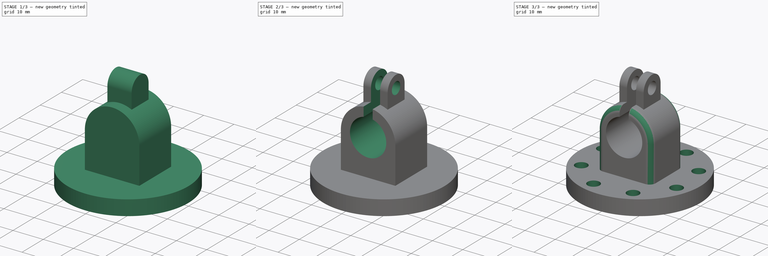
[diagram: build sequence overview — one tinted view per stage of 3, left to right]
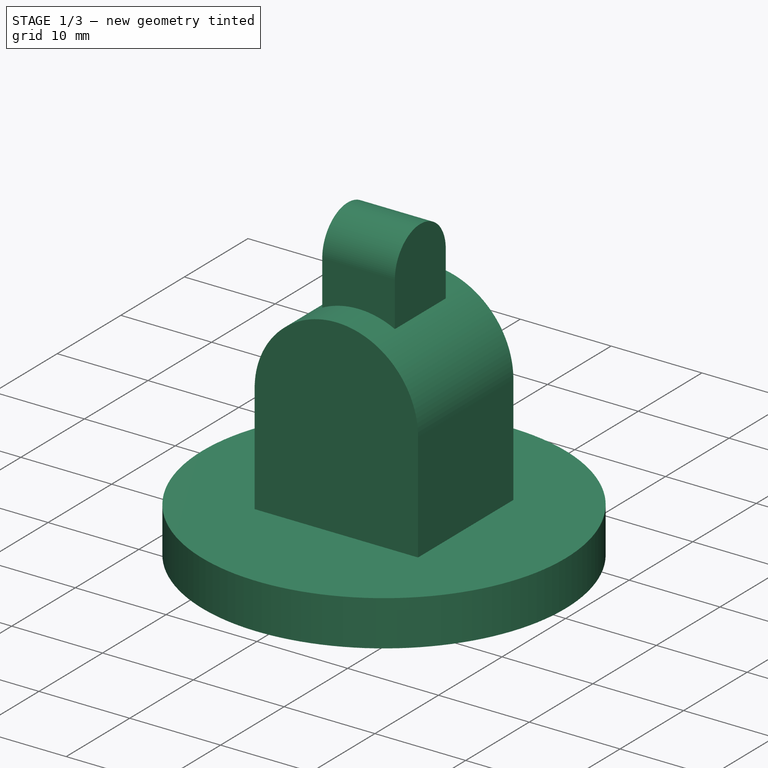
[diagram: stage 1 of 3 — iso view after this stage's code; geometry added in this stage tinted green]
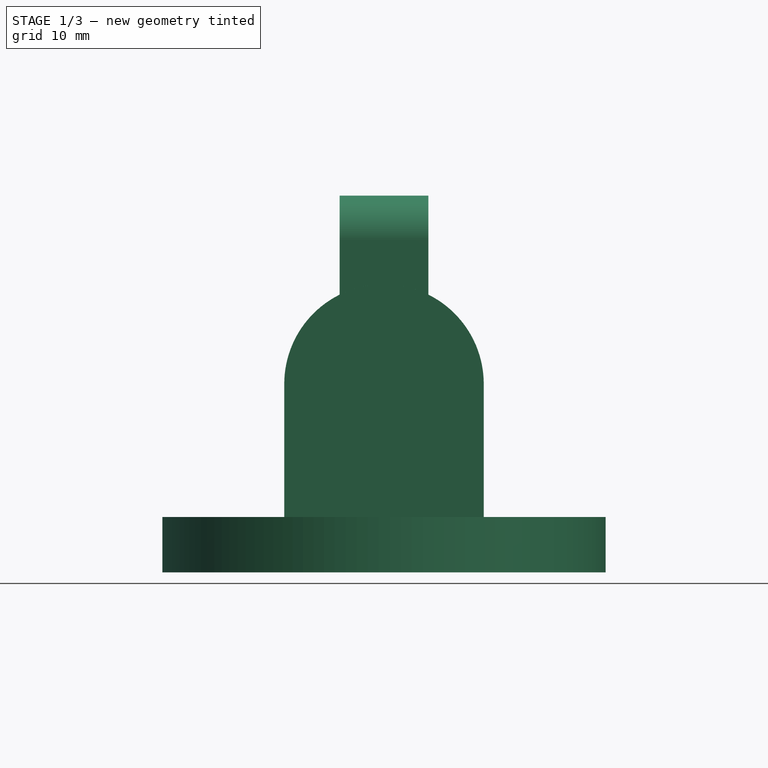
[diagram: stage 1 of 3 — front view after this stage's code; geometry added in this stage tinted green]
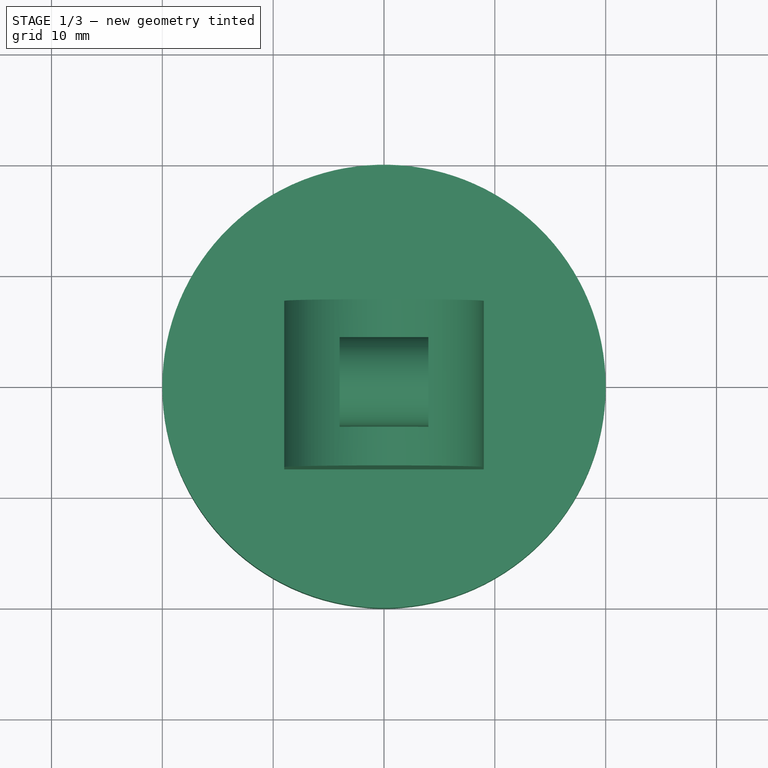
[diagram: stage 1 of 3 — top view after this stage's code; geometry added in this stage tinted green]
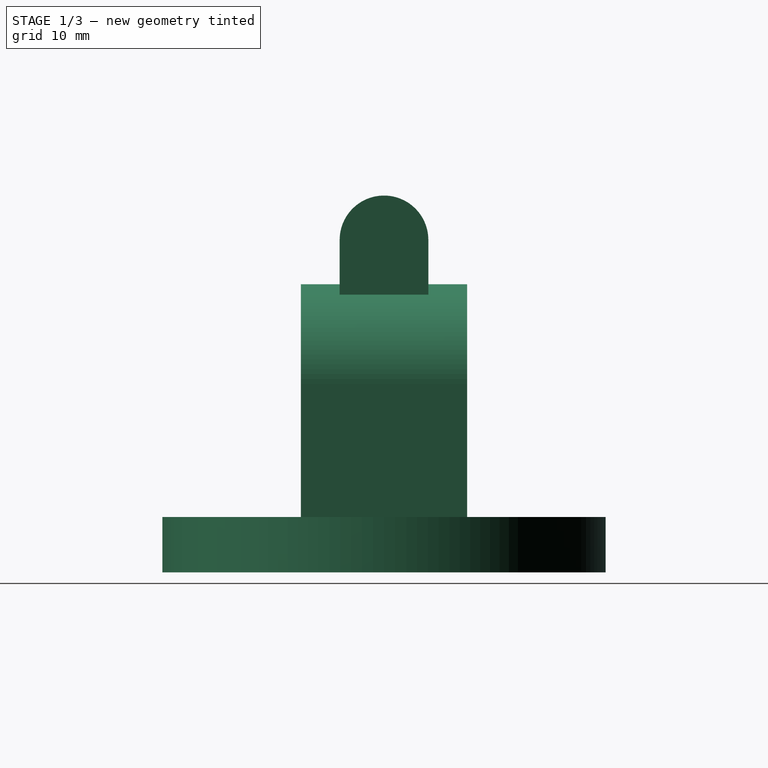
[diagram: stage 1 of 3 — right view after this stage's code; geometry added in this stage tinted green]
FCSTD DOCUMENT  (FreeCAD 0.18R4 (GitTag))
Label: 工装零件
License: All rights reserved
LicenseURL: http://en.wikipedia.org/wiki/All_rights_reserved
objects: Sketcher::SketchObject×6, PartDesign::Pad×3, PartDesign::Pocket×3, PartDesign::PolarPattern×1, PartDesign::Fillet×1, PartDesign::Body×1
note: 21 computed .brp shape members not serialized (recipe doc carries the construction recipe); baked Part::Feature solids carry a one-line shape summary decoded from their .brp

FEATURE [Sketcher::SketchObject] Sketch
  MapMode = 5
  Support = -> [XY_Plane]
  sketch-geometry (1):
    g0: Circle CenterX=0 CenterY=0 CenterZ=0 NormalX=0 NormalY=0 NormalZ=1 AngleXU=0 Radius=20
  constraints (2):
    c: Coincident(g0,g-1)
    c: Radius(g0) = 20
FEATURE [PartDesign::Pad] Pad
  Length = 5
  Length2 = 100
  Profile = -> Sketch
  Type = 0
FEATURE [Sketcher::SketchObject] Sketch001
  MapMode = 5
  Placement = pos=(0,0,0) rot=(1,0,0;1.5708rad)
  Support = -> [XZ_Plane]
  sketch-geometry (4):
    g0: LineSegment StartX=9 StartY=17 StartZ=0 EndX=9 EndY=-0.003877 EndZ=0
    g1: LineSegment StartX=9 StartY=-0.003877 StartZ=0 EndX=-9 EndY=-0.003877 EndZ=0
    g2: LineSegment StartX=-9 StartY=-0.003877 StartZ=0 EndX=-9 EndY=17 EndZ=0
    g3: ArcOfCircle CenterX=0 CenterY=17 CenterZ=0 NormalX=0 NormalY=0 NormalZ=1 AngleXU=0 Radius=9 StartAngle=2e-16 EndAngle=3.14159
  constraints (10):
    c: Coincident(g0,g1)
    c: Coincident(g1,g2)
    c: Horizontal(g1)
    c: Vertical(g0)
    c: Vertical(g2)
    c: PointOnObject(g3,g-2)
    c: Tangent(g3,g0) = 1.5708
    c: Tangent(g3,g2) = 1.5708
    c: DistanceY(g-1,g2) = 17
    c: Radius(g3) = 9
FEATURE [PartDesign::Pad] Pad001
  BaseFeature = -> Pad
  Length = 15
  Length2 = 100
  Midplane = true
  Profile = -> Sketch001
  Type = 0
FEATURE [Sketcher::SketchObject] Sketch002
  MapMode = 5
  Placement = pos=(0,0,0) rot=(0.57735,0.57735,0.57735;2.0944rad)
  Support = -> [YZ_Plane]
  sketch-geometry (4):
    g0: LineSegment StartX=-4 StartY=13.8 StartZ=0 EndX=-4 EndY=30 EndZ=0
    g1: ArcOfCircle CenterX=0 CenterY=30 CenterZ=0 NormalX=0 NormalY=0 NormalZ=1 AngleXU=0 Radius=4 StartAngle=4e-16 EndAngle=3.14159
    g2: LineSegment StartX=4 StartY=30 StartZ=0 EndX=4 EndY=13.8 EndZ=0
    g3: LineSegment StartX=4 StartY=13.8 StartZ=0 EndX=-4 EndY=13.8 EndZ=0
  constraints (11):
    c: Tangent(g0,g1) = 1.5708
    c: Tangent(g1,g2) = 1.5708
    c: Coincident(g2,g3)
    c: Coincident(g0,g3)
    c: Horizontal(g3)
    c: Vertical(g2)
    c: Vertical(g0)
    c: PointOnObject(g1,g-2)
    c: DistanceY(g-1,g1) = 30
    c: Radius(g1) = 4
    c: DistanceY(g-1,g2) = 13.8
FEATURE [PartDesign::Pad] Pad002
  BaseFeature = -> Pad001
  Length = 8
  Length2 = 100
  Midplane = true
  Profile = -> Sketch002
  Type = 0
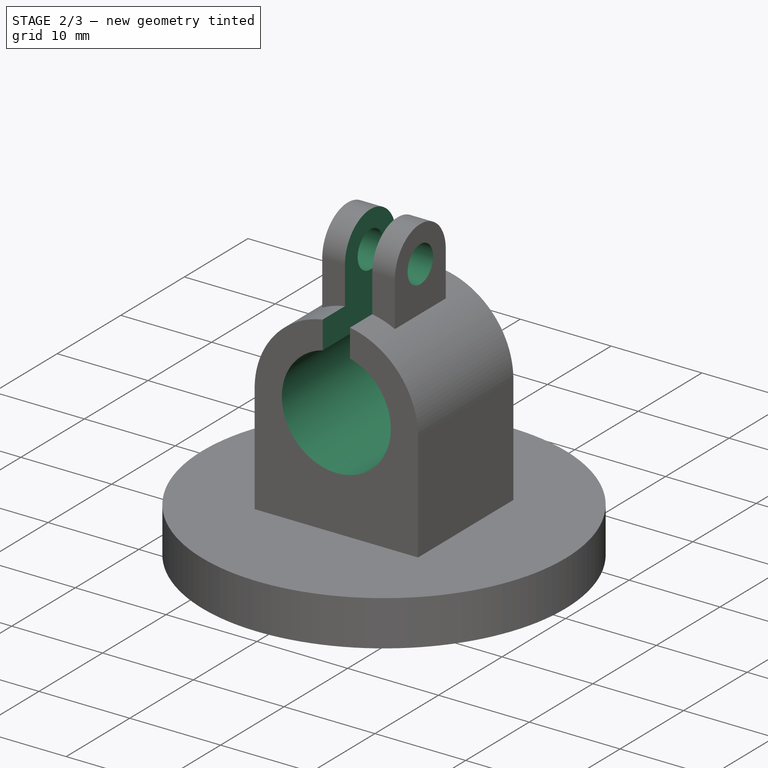
[diagram: stage 2 of 3 — iso view after this stage's code; geometry added in this stage tinted green]
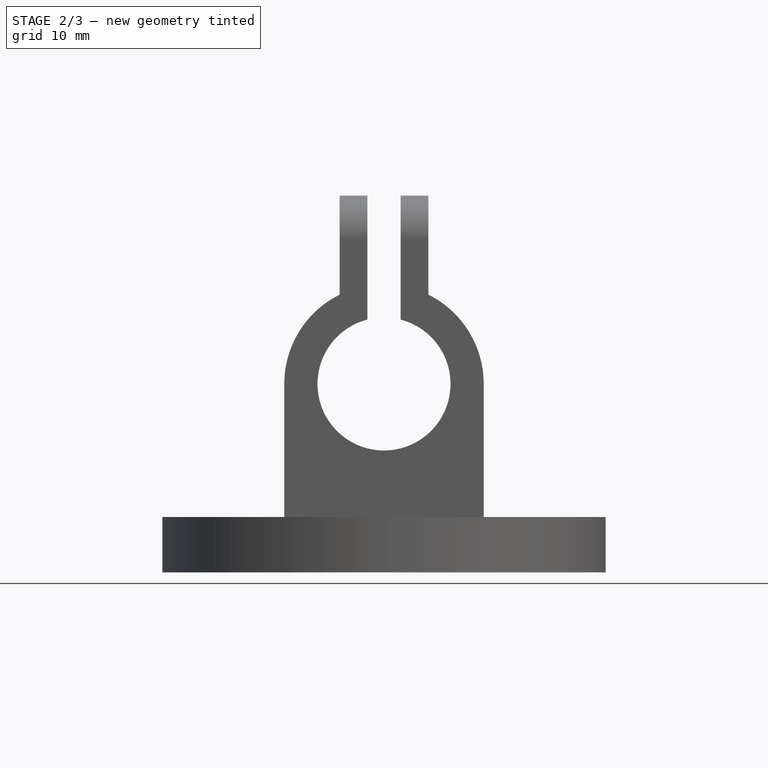
[diagram: stage 2 of 3 — front view after this stage's code; geometry added in this stage tinted green]
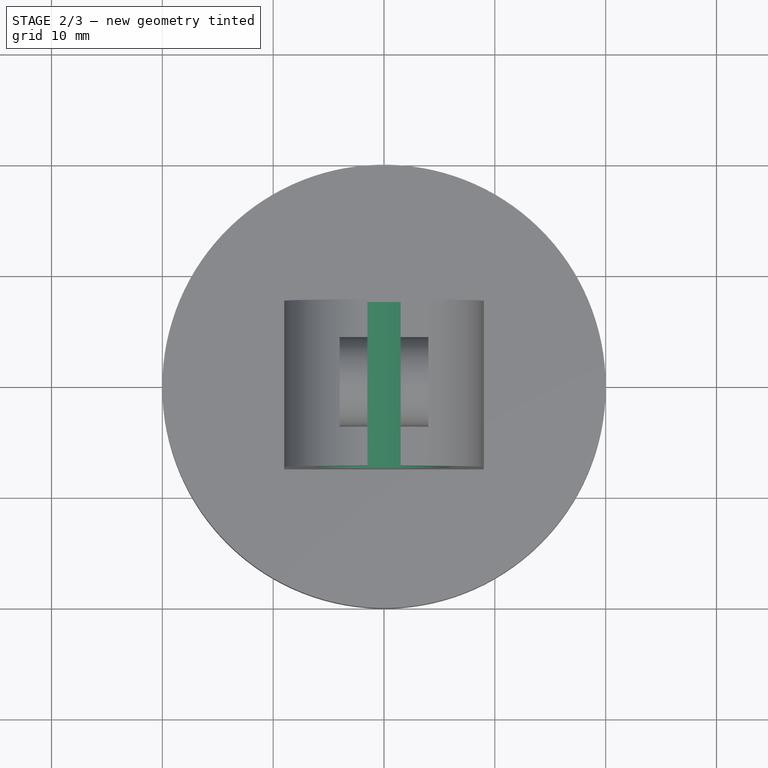
[diagram: stage 2 of 3 — top view after this stage's code; geometry added in this stage tinted green]
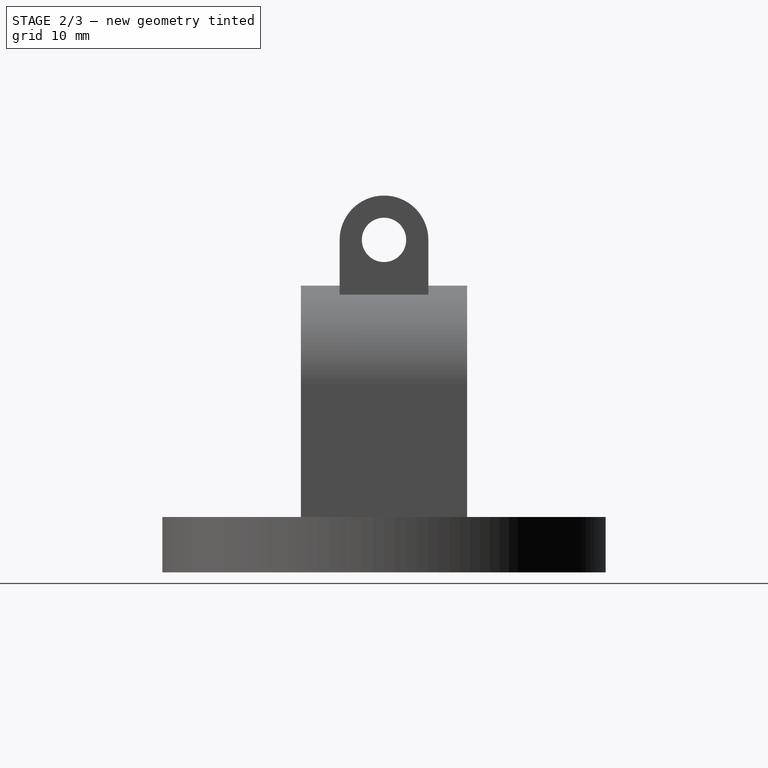
[diagram: stage 2 of 3 — right view after this stage's code; geometry added in this stage tinted green]
FEATURE [Sketcher::SketchObject] Sketch003
  ExternalGeometry = -> [Pad002]
  MapMode = 5
  Placement = pos=(4,-9e-16,9e-16) rot=(0.57735,0.57735,0.57735;2.0944rad)
  Support = -> [Pad002]
  sketch-geometry (1):
    g0: Circle CenterX=7.1e-15 CenterY=30 CenterZ=0 NormalX=0 NormalY=0 NormalZ=1 AngleXU=0 Radius=2
  constraints (2):
    c: Coincident(g0,g-3)
    c: Radius(g0) = 2
FEATURE [PartDesign::Pocket] Pocket
  BaseFeature = -> Pad002
  Length = 5
  Length2 = 100
  Profile = -> Sketch003
  Type = 1
FEATURE [Sketcher::SketchObject] Sketch004
  ExternalGeometry = -> [Pocket]
  MapMode = 5
  Placement = pos=(0,-7.5,1.7e-15) rot=(1,0,0;1.5708rad)
  Support = -> [Pocket]
  sketch-geometry (4):
    g0: ArcOfCircle CenterX=0 CenterY=17 CenterZ=0 NormalX=0 NormalY=0 NormalZ=1 AngleXU=0 Radius=6 StartAngle=1.82348 EndAngle=7.6013
    g1: LineSegment StartX=-1.5 StartY=39.24 StartZ=0 EndX=1.5 EndY=39.24 EndZ=0
    g2: LineSegment StartX=1.5 StartY=39.24 StartZ=0 EndX=1.5 EndY=22.8095 EndZ=0
    g3: LineSegment StartX=-1.5 StartY=22.8095 StartZ=0 EndX=-1.5 EndY=39.24 EndZ=0
  constraints (11):
    c: Coincident(g1,g2)
    c: Coincident(g3,g1)
    c: Vertical(g2)
    c: Vertical(g3)
    c: Coincident(g0,g-3)
    c: Radius(g0) = 6
    c: Coincident(g3,g0)
    c: Coincident(g2,g0)
    c: Symmetric(g1,g1,g-2)
    c: DistanceX(g1,g1) = 3
    c: DistanceY(g-1,g1) = 39.24
FEATURE [PartDesign::Pocket] Pocket001
  BaseFeature = -> Pocket
  Length = 5
  Length2 = 100
  Profile = -> Sketch004
  Type = 1
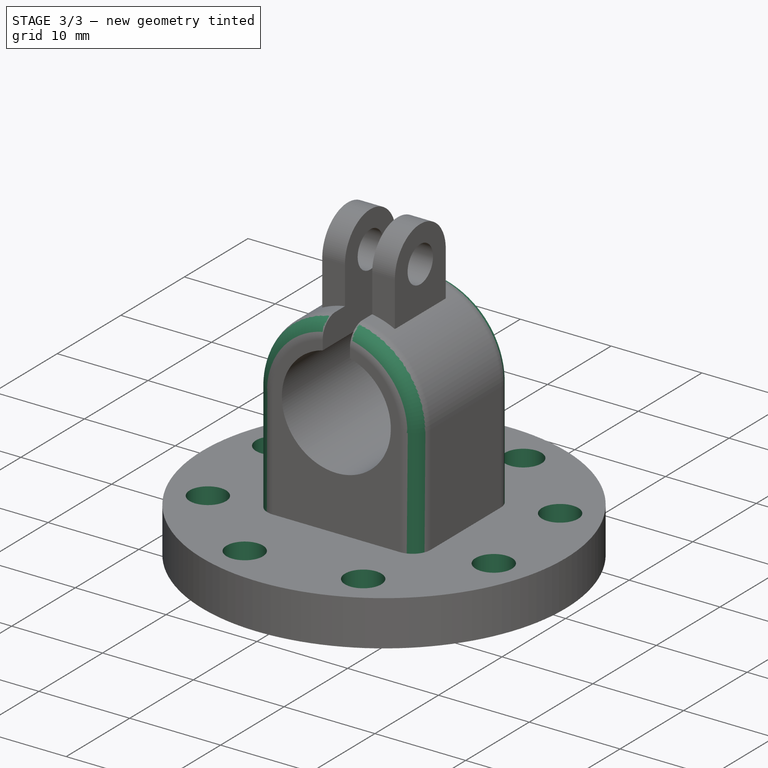
[diagram: stage 3 of 3 — iso view after this stage's code; geometry added in this stage tinted green]
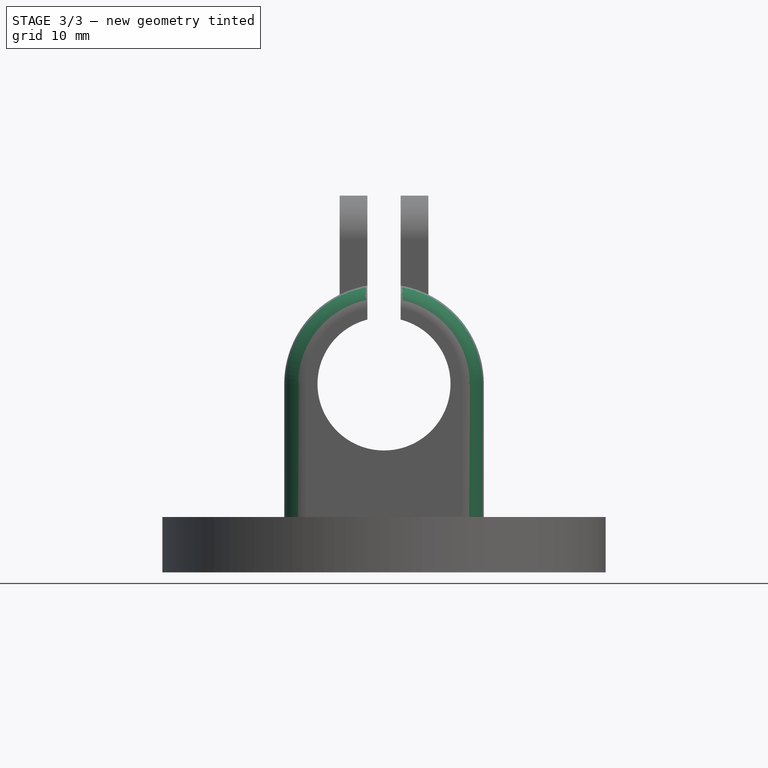
[diagram: stage 3 of 3 — front view after this stage's code; geometry added in this stage tinted green]
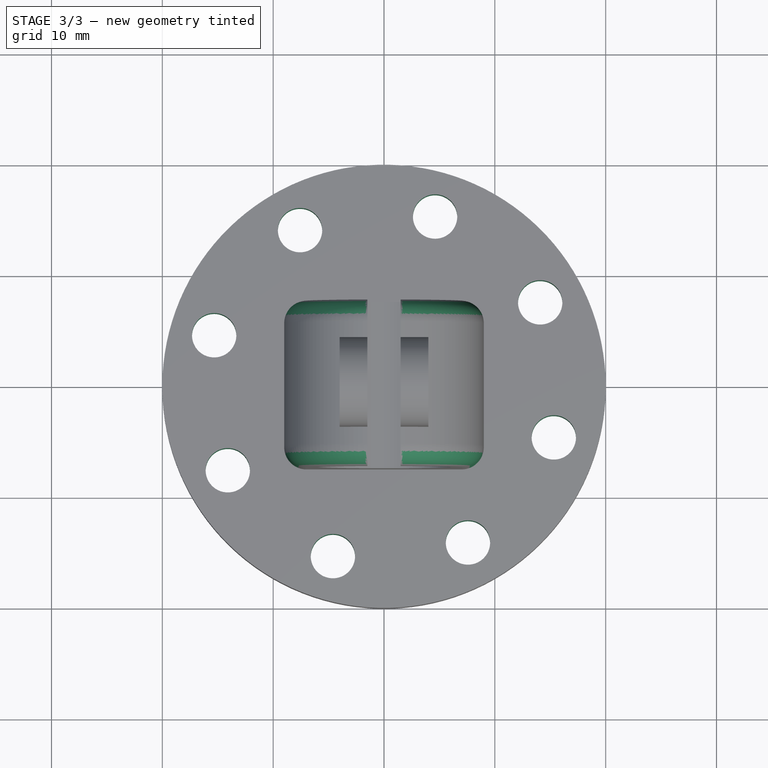
[diagram: stage 3 of 3 — top view after this stage's code; geometry added in this stage tinted green]
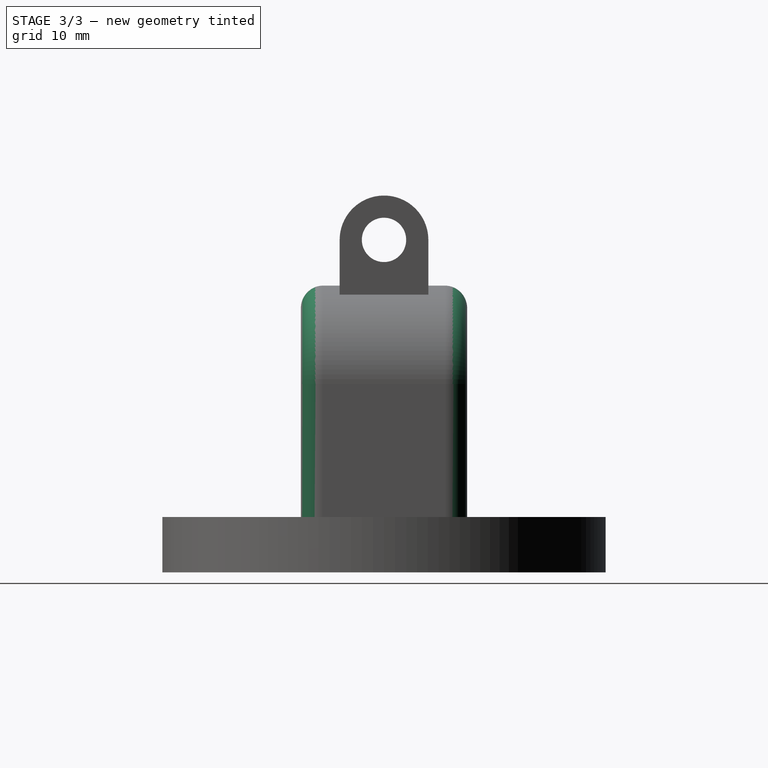
[diagram: stage 3 of 3 — right view after this stage's code; geometry added in this stage tinted green]
FEATURE [Sketcher::SketchObject] Sketch005
  MapMode = 5
  Placement = pos=(0,0,5) rot=(0,0,1;0rad)
  Support = -> [Pocket001]
  sketch-geometry (2):
    g0: Circle [constr] CenterX=0 CenterY=0 CenterZ=0 NormalX=0 NormalY=0 NormalZ=1 AngleXU=0 Radius=16
    g1: Circle CenterX=4.60923 CenterY=15.3217 CenterZ=0 NormalX=0 NormalY=0 NormalZ=1 AngleXU=0 Radius=2
  constraints (4):
    c: Coincident(g0,g-1)
    c: Radius(g0) = 16
    c: PointOnObject(g1,g0)
    c: Radius(g1) = 2
FEATURE [PartDesign::Pocket] Pocket002
  BaseFeature = -> Pocket001
  Length = 5
  Length2 = 100
  Profile = -> Sketch005
  Type = 1
FEATURE [PartDesign::PolarPattern] PolarPattern
  Angle = 360
  Axis = -> Sketch005 [N_Axis]
  BaseFeature = -> Pocket002
  Occurrences = 8
  Originals = -> [Pocket002]
FEATURE [PartDesign::Fillet] Fillet
  Base = -> PolarPattern [Edge47,Edge51,Edge53,Edge57]
  BaseFeature = -> PolarPattern
  Radius = 2
FEATURE [PartDesign::Body] Body
  Group = -> [Sketch,Pad,Sketch001,Pad001,Sketch002,Pad002,Sketch003,Pocket,Sketch004,Pocket001,Sketch005,Pocket002,PolarPattern,Fillet]
  Origin = -> Origin
  Tip = -> Fillet
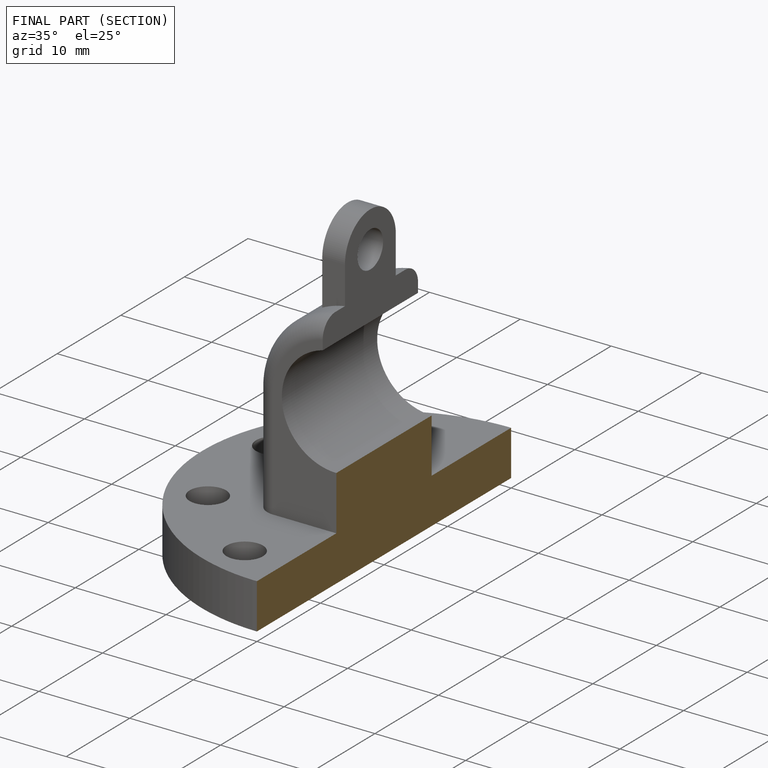
[diagram: finished part — half-section view (interior)]
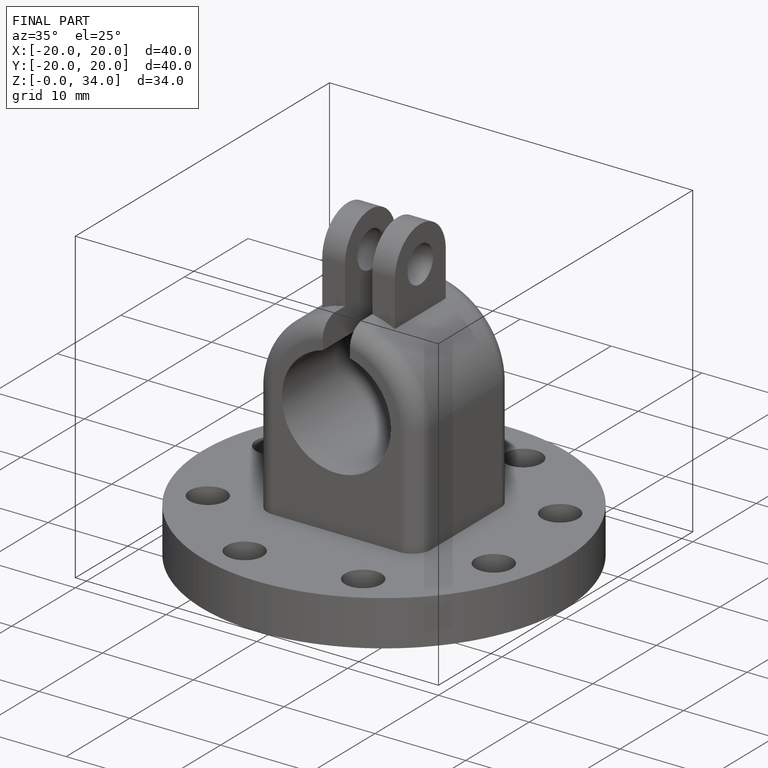
[diagram: finished part — iso view with bounding-box wireframe]
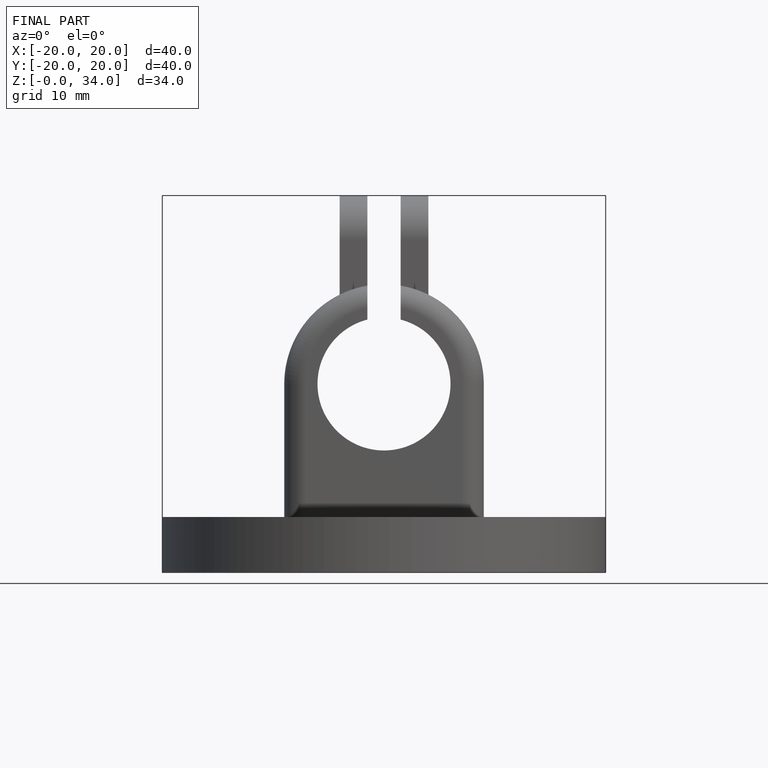
[diagram: finished part — front view with bounding-box wireframe]
